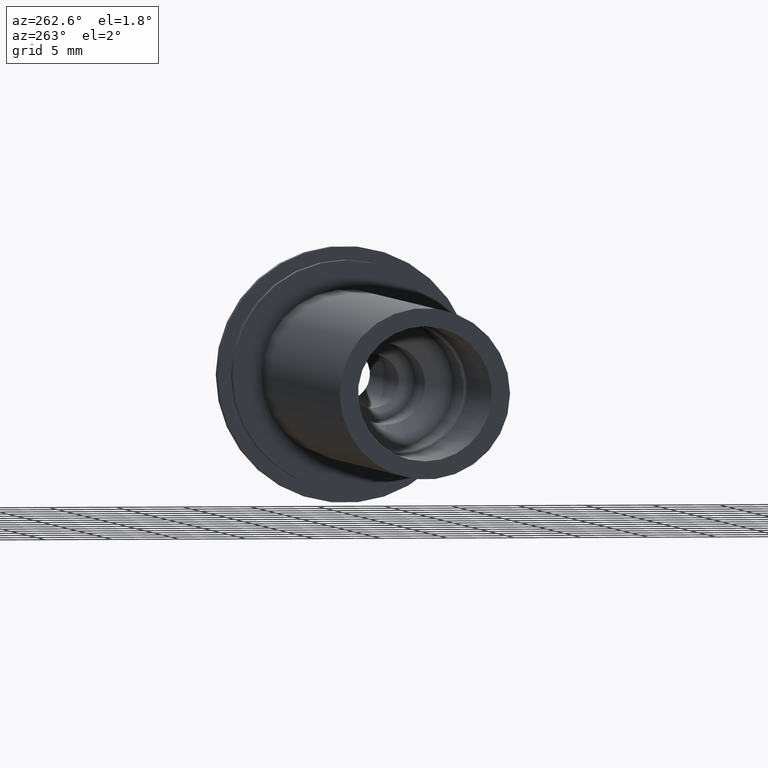
[diagram: clean part render]
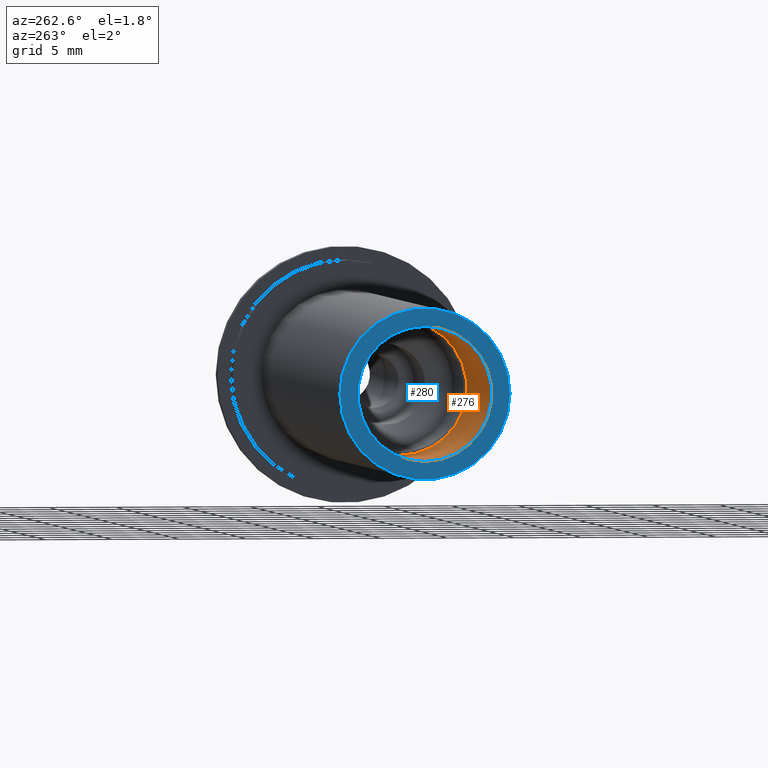
[diagram: same view with the hole feature highlighted: cylindrical wall and planar end face, labeled with their STEP entity ids]
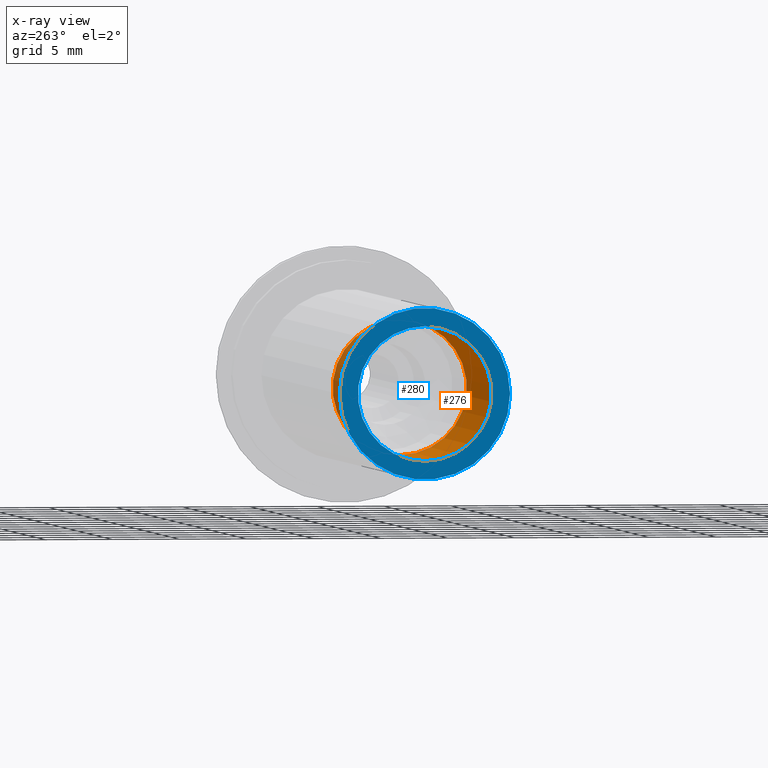
[diagram: x-ray of the same camera — body ghosted, the hole faces saturated]
A machine part, auxiliary view. The highlighted faces form one hole feature of diameter 10 mm: the cylindrical wall (entity #276, orange) and its adjacent planar end face (entity #280, blue) — they share a circular edge in the B-rep.
The next image is the same camera in x-ray (body ghosted, the hole faces saturated) — the bore reads through the body.
Wall:
#108=FACE_OUTER_BOUND('',#122,.T.);
#122=EDGE_LOOP('',(#239,#240,#241,#242));
#140=LINE('',#489,#150);
#150=VECTOR('',#393,5.);
#161=CIRCLE('',#320,5.);
#162=CIRCLE('',#322,5.);
#180=VERTEX_POINT('',#483);
#181=VERTEX_POINT('',#487);
#200=EDGE_CURVE('',#180,#180,#161,.T.);
#202=EDGE_CURVE('',#181,#181,#162,.T.);
#203=EDGE_CURVE('',#181,#180,#140,.T.);
#239=ORIENTED_EDGE('',*,*,#202,.F.);
#240=ORIENTED_EDGE('',*,*,#203,.T.);
#241=ORIENTED_EDGE('',*,*,#200,.F.);
#242=ORIENTED_EDGE('',*,*,#203,.F.);
#266=CYLINDRICAL_SURFACE('',#321,5.);
#276=ADVANCED_FACE('',(#108),#266,.F.);
#320=AXIS2_PLACEMENT_3D('',#484,#386,#387);
#321=AXIS2_PLACEMENT_3D('',#486,#389,#390);
#322=AXIS2_PLACEMENT_3D('',#488,#391,#392);
#386=DIRECTION('center_axis',(-1.,0.,0.));
#387=DIRECTION('ref_axis',(0.,0.,1.));
#389=DIRECTION('center_axis',(-1.,0.,0.));
#390=DIRECTION('ref_axis',(0.,0.,1.));
#391=DIRECTION('center_axis',(1.,0.,0.));
#392=DIRECTION('ref_axis',(0.,0.,1.));
#393=DIRECTION('',(1.,0.,0.));
#483=CARTESIAN_POINT('',(-32.5,-6.12323399573677E-16,-5.));
#484=CARTESIAN_POINT('Origin',(-32.5,0.,0.));
#486=CARTESIAN_POINT('Origin',(-39.75,0.,0.));
#487=CARTESIAN_POINT('',(-47.,-6.12323399573677E-16,-5.));
#488=CARTESIAN_POINT('Origin',(-47.,0.,0.));
#489=CARTESIAN_POINT('',(-39.75,-6.12323399573677E-16,-5.));
End face:
#93=FACE_BOUND('',#129,.T.);
#97=PLANE('',#329);
#112=FACE_OUTER_BOUND('',#128,.T.);
#128=EDGE_LOOP('',(#251));
#129=EDGE_LOOP('',(#252));
#162=CIRCLE('',#322,5.);
#166=CIRCLE('',#330,6.35);
#181=VERTEX_POINT('',#487);
#185=VERTEX_POINT('',#501);
#202=EDGE_CURVE('',#181,#181,#162,.T.);
#208=EDGE_CURVE('',#185,#185,#166,.T.);
#251=ORIENTED_EDGE('',*,*,#208,.F.);
#252=ORIENTED_EDGE('',*,*,#202,.T.);
#280=ADVANCED_FACE('',(#112,#93),#97,.T.);
#322=AXIS2_PLACEMENT_3D('',#488,#391,#392);
#329=AXIS2_PLACEMENT_3D('',#500,#407,#408);
#330=AXIS2_PLACEMENT_3D('',#502,#409,#410);
#391=DIRECTION('center_axis',(1.,0.,0.));
#392=DIRECTION('ref_axis',(0.,0.,1.));
#407=DIRECTION('center_axis',(-1.,0.,0.));
#408=DIRECTION('ref_axis',(0.,0.,1.));
#409=DIRECTION('center_axis',(1.,0.,0.));
#410=DIRECTION('ref_axis',(0.,0.,-1.));
#487=CARTESIAN_POINT('',(-47.,-6.12323399573677E-16,-5.));
#488=CARTESIAN_POINT('Origin',(-47.,0.,0.));
#500=CARTESIAN_POINT('Origin',(-47.,6.35,0.));
#501=CARTESIAN_POINT('',(-47.,-6.35,-7.7765071745857E-16));
#502=CARTESIAN_POINT('Origin',(-47.,0.,0.));